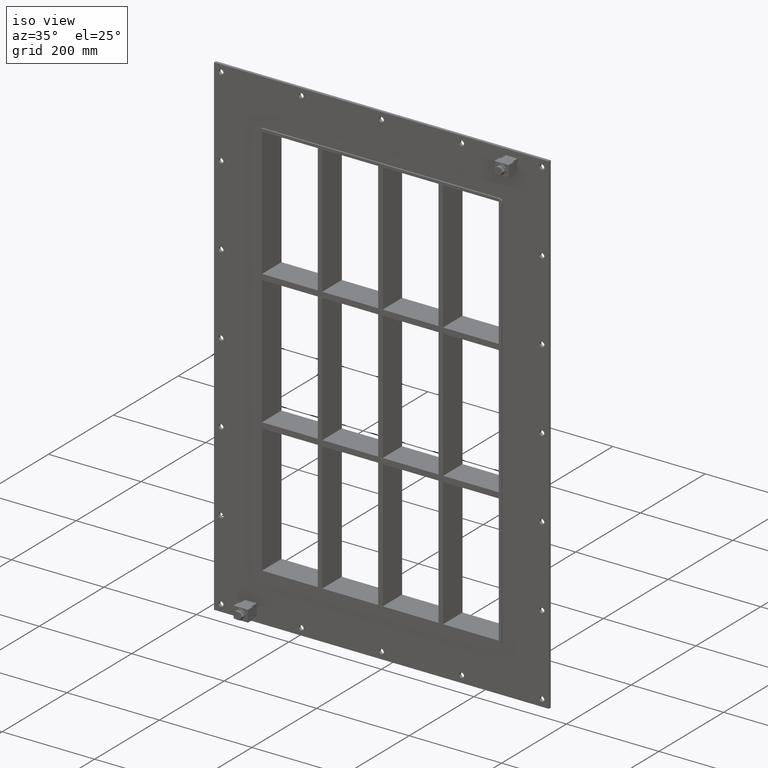
[diagram: clean part render]
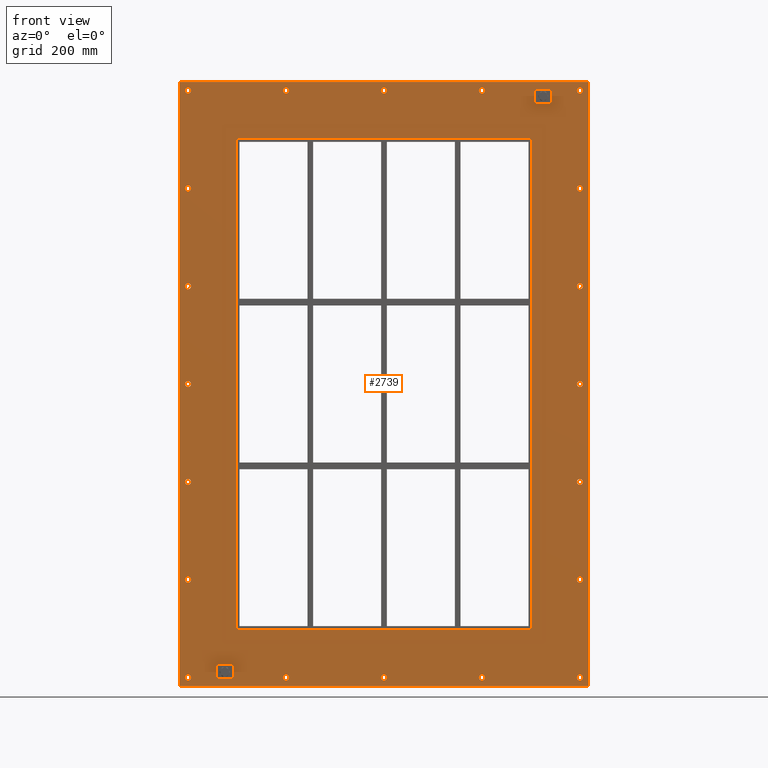
[diagram: tour spotlight — one face highlighted and labeled with its STEP entity id]
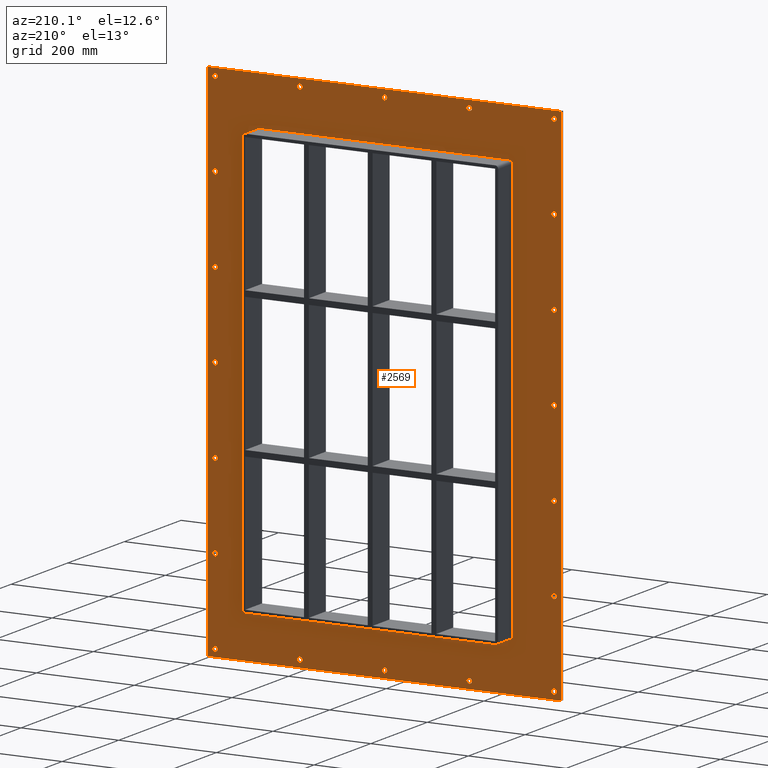
[diagram: tour spotlight — one face highlighted and labeled with its STEP entity id]
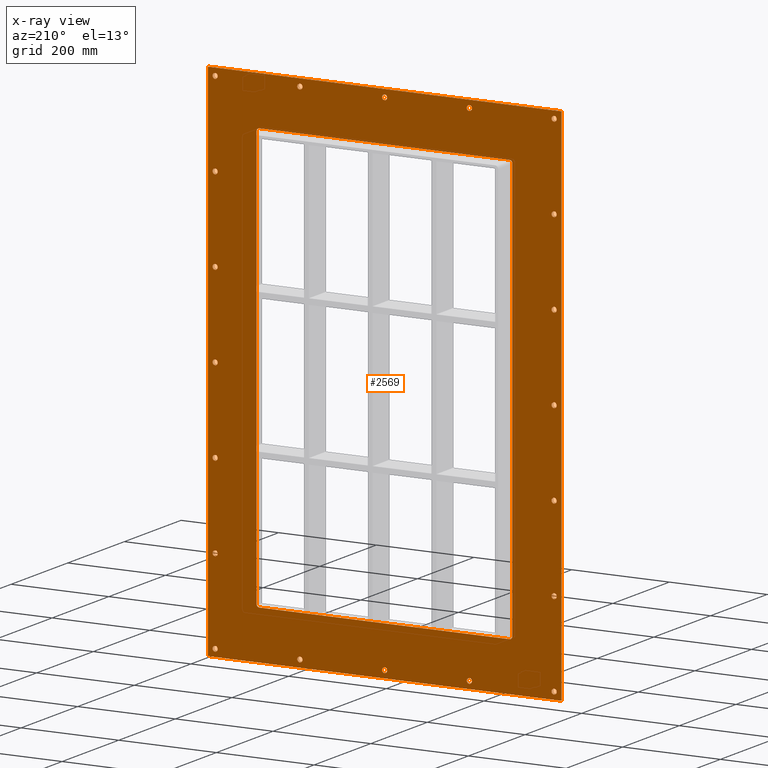
[diagram: x-ray of the same camera — body ghosted, this tour face saturated]
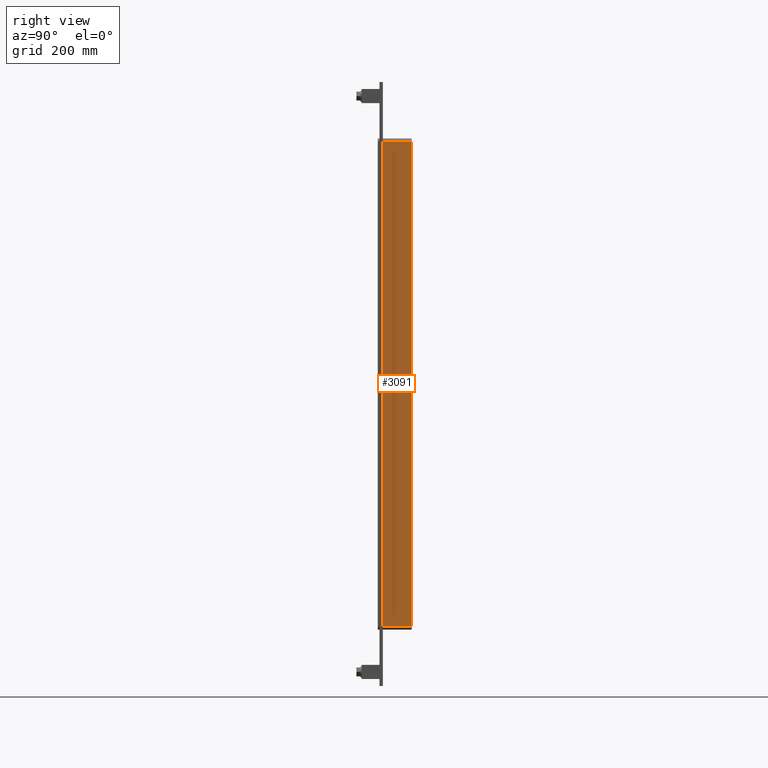
[diagram: tour spotlight — one face highlighted and labeled with its STEP entity id]
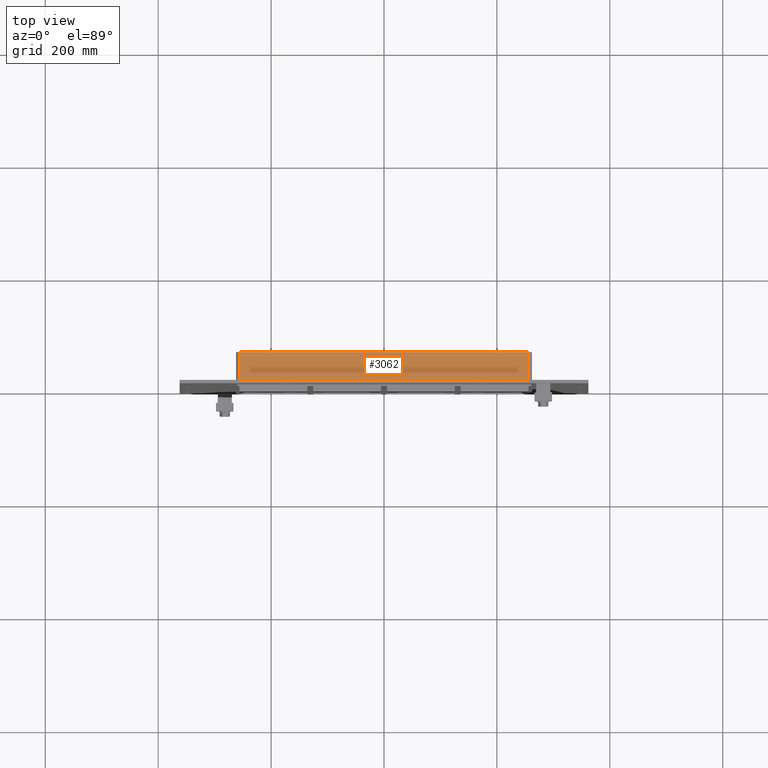
[diagram: tour spotlight — one face highlighted and labeled with its STEP entity id]
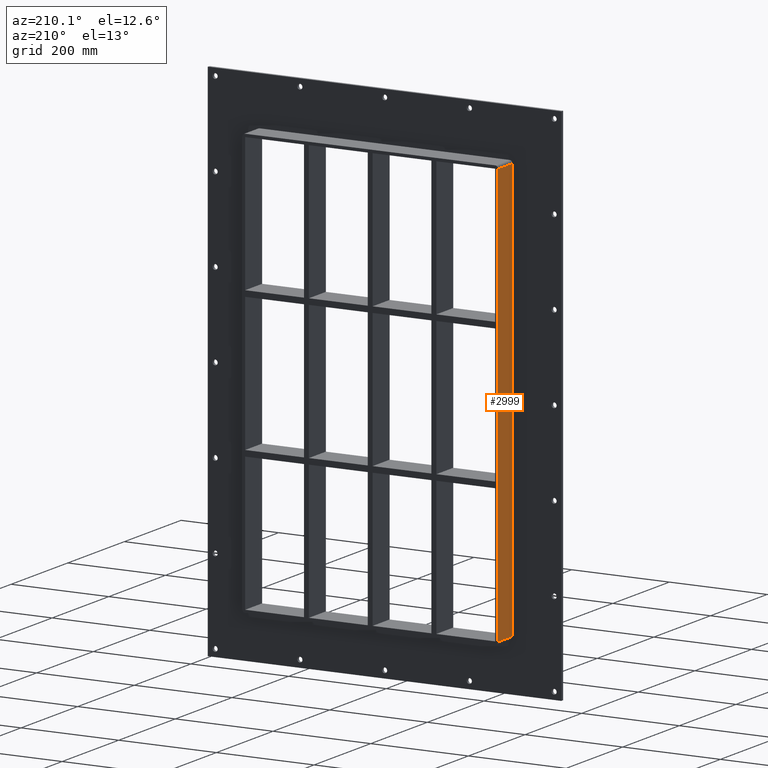
[diagram: tour spotlight — one face highlighted and labeled with its STEP entity id]
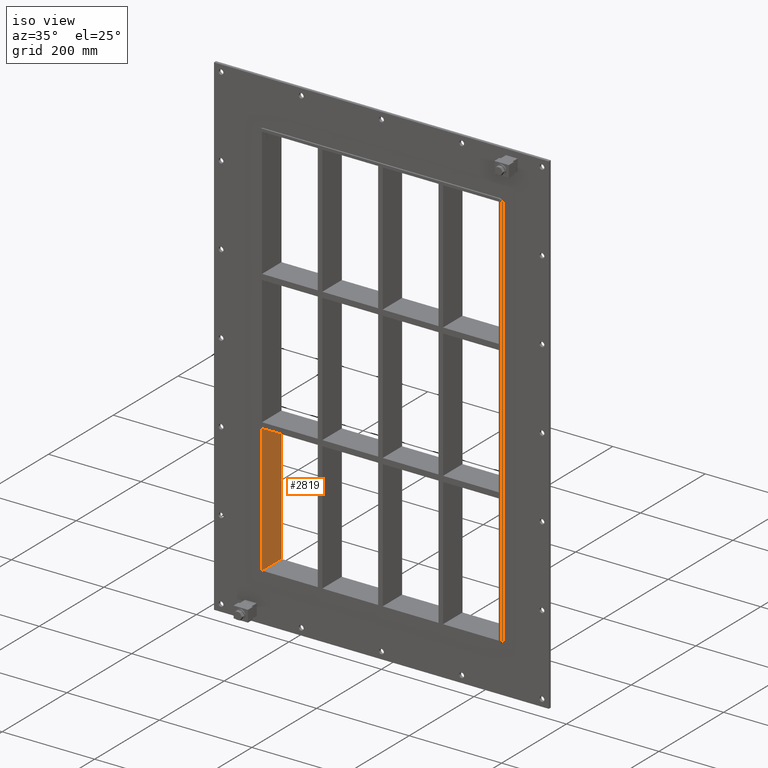
[diagram: tour spotlight — one face highlighted and labeled with its STEP entity id]
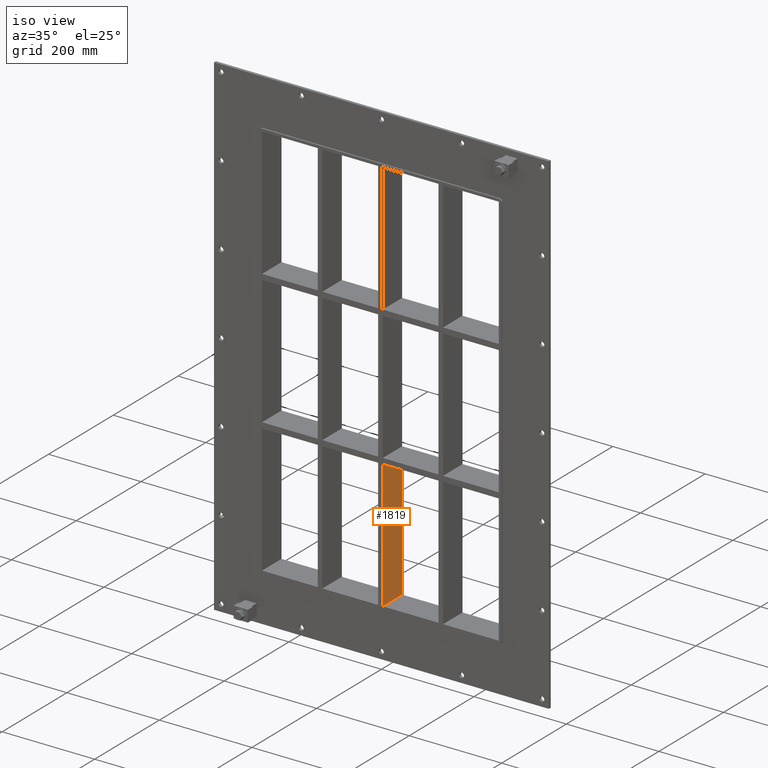
[diagram: tour spotlight — one face highlighted and labeled with its STEP entity id]
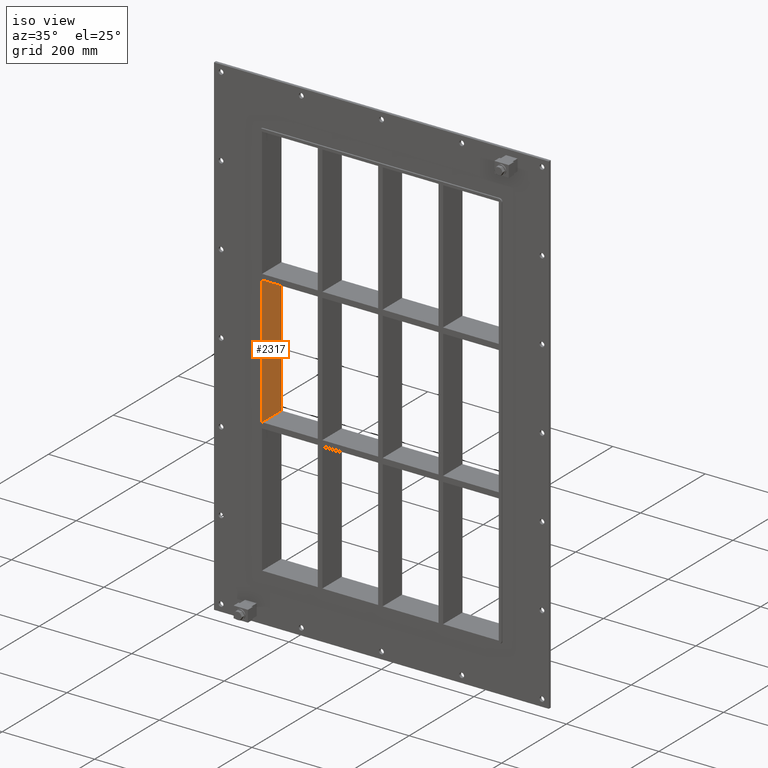
[diagram: tour spotlight — one face highlighted and labeled with its STEP entity id]
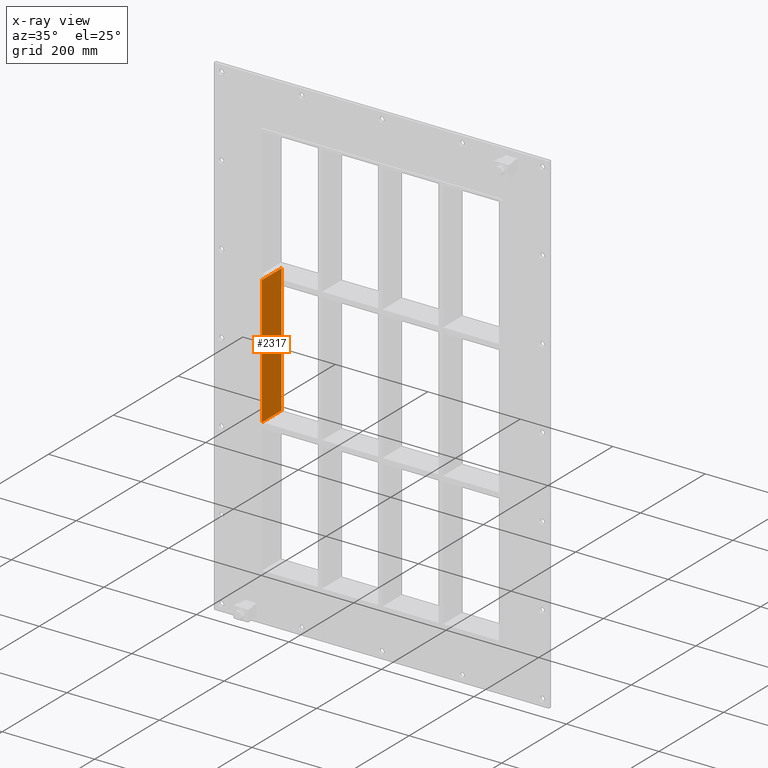
[diagram: x-ray of the same camera — body ghosted, this tour face saturated]
A machine part: a face-by-face anatomy tour. The part has 170 B-rep faces; the first image is the clean iso view, then the 8 largest visible faces are spotlighted one at a time (largest first), each with its STEP entity span.

Face 1 — front view, entity #2739. In plain terms, the highlighted planar face has unit normal (0, 1, 0).
Definition (entity closure, byte-faithful):
#84=CARTESIAN_POINT('',(-341.75000000000017,0.0,-520.0));
#85=VERTEX_POINT('',#84);
#86=CARTESIAN_POINT('',(-347.00000000000017,0.0,-520.0));
#87=DIRECTION('',(0.0,1.0,0.0));
#88=DIRECTION('',(1.0,0.0,0.0));
#89=AXIS2_PLACEMENT_3D('',#86,#87,#88);
#90=CIRCLE('',#89,5.25);
#91=EDGE_CURVE('',#85,#85,#90,.T.);
#112=CARTESIAN_POINT('',(352.24999999999989,0.0,-346.69999999999987));
#113=VERTEX_POINT('',#112);
#114=CARTESIAN_POINT('',(346.99999999999989,0.0,-346.69999999999987));
#115=DIRECTION('',(0.0,1.0,0.0));
#116=DIRECTION('',(1.0,0.0,0.0));
#117=AXIS2_PLACEMENT_3D('',#114,#115,#116);
#118=CIRCLE('',#117,5.25);
#119=EDGE_CURVE('',#113,#113,#118,.T.);
#140=CARTESIAN_POINT('',(-341.75000000000017,0.0,-346.69999999999987));
#141=VERTEX_POINT('',#140);
#142=CARTESIAN_POINT('',(-347.00000000000017,0.0,-346.69999999999987));
#143=DIRECTION('',(0.0,1.0,0.0));
#144=DIRECTION('',(1.0,0.0,0.0));
#145=AXIS2_PLACEMENT_3D('',#142,#143,#144);
#146=CIRCLE('',#145,5.25);
#147=EDGE_CURVE('',#141,#141,#146,.T.);
#168=CARTESIAN_POINT('',(352.24999999999989,0.0,-173.39999999999992));
#169=VERTEX_POINT('',#168);
#170=CARTESIAN_POINT('',(346.99999999999989,0.0,-173.39999999999992));
#171=DIRECTION('',(0.0,1.0,0.0));
#172=DIRECTION('',(1.0,0.0,0.0));
#173=AXIS2_PLACEMENT_3D('',#170,#171,#172);
#174=CIRCLE('',#173,5.25);
#175=EDGE_CURVE('',#169,#169,#174,.T.);
#196=CARTESIAN_POINT('',(-341.75000000000017,0.0,-173.39999999999992));
#197=VERTEX_POINT('',#196);
#198=CARTESIAN_POINT('',(-347.00000000000017,0.0,-173.39999999999992));
#199=DIRECTION('',(0.0,1.0,0.0));
#200=DIRECTION('',(1.0,0.0,0.0));
#201=AXIS2_PLACEMENT_3D('',#198,#199,#200);
#202=CIRCLE('',#201,5.25);
#203=EDGE_CURVE('',#197,#197,#202,.T.);
#224=CARTESIAN_POINT('',(352.24999999999989,0.0,-0.099999999999945));
#225=VERTEX_POINT('',#224);
#226=CARTESIAN_POINT('',(346.99999999999989,0.0,-0.099999999999945));
#227=DIRECTION('',(0.0,1.0,0.0));
#228=DIRECTION('',(1.0,0.0,0.0));
#229=AXIS2_PLACEMENT_3D('',#226,#227,#228);
#230=CIRCLE('',#229,5.25);
#231=EDGE_CURVE('',#225,#225,#230,.T.);
#252=CARTESIAN_POINT('',(-341.75000000000017,0.0,-0.099999999999945));
#253=VERTEX_POINT('',#252);
#254=CARTESIAN_POINT('',(-347.00000000000017,0.0,-0.099999999999945));
#255=DIRECTION('',(0.0,1.0,0.0));
#256=DIRECTION('',(1.0,0.0,0.0));
#257=AXIS2_PLACEMENT_3D('',#254,#255,#256);
#258=CIRCLE('',#257,5.25);
#259=EDGE_CURVE('',#253,#253,#258,.T.);
#280=CARTESIAN_POINT('',(352.24999999999989,0.0,173.20000000000019));
#281=VERTEX_POINT('',#280);
#282=CARTESIAN_POINT('',(346.99999999999989,0.0,173.20000000000019));
#283=DIRECTION('',(0.0,1.0,0.0));
#284=DIRECTION('',(1.0,0.0,0.0));
#285=AXIS2_PLACEMENT_3D('',#282,#283,#284);
#286=CIRCLE('',#285,5.25);
#287=EDGE_CURVE('',#281,#281,#286,.T.);
#308=CARTESIAN_POINT('',(-341.75000000000017,0.0,173.20000000000019));
#309=VERTEX_POINT('',#308);
#310=CARTESIAN_POINT('',(-347.00000000000017,0.0,173.20000000000019));
#311=DIRECTION('',(0.0,1.0,0.0));
#312=DIRECTION('',(1.0,0.0,0.0));
#313=AXIS2_PLACEMENT_3D('',#310,#311,#312);
#314=CIRCLE('',#313,5.25);
#315=EDGE_CURVE('',#309,#309,#314,.T.);
#336=CARTESIAN_POINT('',(352.24999999999989,0.0,346.50000000000023));
#337=VERTEX_POINT('',#336);
#338=CARTESIAN_POINT('',(346.99999999999989,0.0,346.50000000000023));
#339=DIRECTION('',(0.0,1.0,0.0));
#340=DIRECTION('',(1.0,0.0,0.0));
#341=AXIS2_PLACEMENT_3D('',#338,#339,#340);
#342=CIRCLE('',#341,5.25);
#343=EDGE_CURVE('',#337,#337,#342,.T.);
#364=CARTESIAN_POINT('',(-341.75000000000017,0.0,346.50000000000023));
#365=VERTEX_POINT('',#364);
#366=CARTESIAN_POINT('',(-347.00000000000017,0.0,346.50000000000023));
#367=DIRECTION('',(0.0,1.0,0.0));
#368=DIRECTION('',(1.0,0.0,0.0));
#369=AXIS2_PLACEMENT_3D('',#366,#367,#368);
#370=CIRCLE('',#369,5.25);
#371=EDGE_CURVE('',#365,#365,#370,.T.);
#392=CARTESIAN_POINT('',(-168.25000000000017,0.0,519.80000000000018));
#393=VERTEX_POINT('',#392);
#394=CARTESIAN_POINT('',(-173.50000000000017,0.0,519.80000000000018));
#395=DIRECTION('',(0.0,1.0,0.0));
#396=DIRECTION('',(1.0,0.0,0.0));
#397=AXIS2_PLACEMENT_3D('',#394,#395,#396);
#398=CIRCLE('',#397,5.25);
#399=EDGE_CURVE('',#393,#393,#398,.T.);
#420=CARTESIAN_POINT('',(-168.25000000000017,0.0,-520.0));
#421=VERTEX_POINT('',#420);
#422=CARTESIAN_POINT('',(-173.50000000000017,0.0,-520.0));
#423=DIRECTION('',(0.0,1.0,0.0));
#424=DIRECTION('',(1.0,0.0,0.0));
#425=AXIS2_PLACEMENT_3D('',#422,#423,#424);
#426=CIRCLE('',#425,5.25);
#427=EDGE_CURVE('',#421,#421,#426,.T.);
#448=CARTESIAN_POINT('',(5.249999999999844,0.0,519.80000000000018));
#449=VERTEX_POINT('',#448);
#450=CARTESIAN_POINT('',(-1.421085E-013,0.0,519.80000000000018));
#451=DIRECTION('',(0.0,1.0,0.0));
#452=DIRECTION('',(1.0,0.0,0.0));
#453=AXIS2_PLACEMENT_3D('',#450,#451,#452);
#454=CIRCLE('',#453,5.25);
#455=EDGE_CURVE('',#449,#449,#454,.T.);
#476=CARTESIAN_POINT('',(5.249999999999844,0.0,-520.0));
#477=VERTEX_POINT('',#476);
#478=CARTESIAN_POINT('',(-1.421085E-013,0.0,-520.0));
#479=DIRECTION('',(0.0,1.0,0.0));
#480=DIRECTION('',(1.0,0.0,0.0));
#481=AXIS2_PLACEMENT_3D('',#478,#479,#480);
#482=CIRCLE('',#481,5.25);
#483=EDGE_CURVE('',#477,#477,#482,.T.);
#504=CARTESIAN_POINT('',(178.74999999999986,0.0,519.80000000000018));
#505=VERTEX_POINT('',#504);
#506=CARTESIAN_POINT('',(173.49999999999989,0.0,519.80000000000018));
#507=DIRECTION('',(0.0,1.0,0.0));
#508=DIRECTION('',(1.0,0.0,0.0));
#509=AXIS2_PLACEMENT_3D('',#506,#507,#508);
#510=CIRCLE('',#509,5.25);
#511=EDGE_CURVE('',#505,#505,#510,.T.);
#532=CARTESIAN_POINT('',(178.74999999999986,0.0,-520.0));
#533=VERTEX_POINT('',#532);
#534=CARTESIAN_POINT('',(173.49999999999989,0.0,-520.0));
#535=DIRECTION('',(0.0,1.0,0.0));
#536=DIRECTION('',(1.0,0.0,0.0));
#537=AXIS2_PLACEMENT_3D('',#534,#535,#536);
#538=CIRCLE('',#537,5.25);
#539=EDGE_CURVE('',#533,#533,#538,.T.);
#560=CARTESIAN_POINT('',(352.24999999999989,0.0,-520.0));
#561=VERTEX_POINT('',#560);
#562=CARTESIAN_POINT('',(346.99999999999989,0.0,-520.0));
#563=DIRECTION('',(0.0,1.0,0.0));
#564=DIRECTION('',(1.0,0.0,0.0));
#565=AXIS2_PLACEMENT_3D('',#562,#563,#564);
#566=CIRCLE('',#565,5.25);
#567=EDGE_CURVE('',#561,#561,#566,.T.);
#588=CARTESIAN_POINT('',(-341.75000000000017,0.0,519.80000000000018));
#589=VERTEX_POINT('',#588);
#590=CARTESIAN_POINT('',(-347.00000000000017,0.0,519.80000000000018));
#591=DIRECTION('',(0.0,1.0,0.0));
#592=DIRECTION('',(1.0,0.0,0.0));
#593=AXIS2_PLACEMENT_3D('',#590,#591,#592);
#594=CIRCLE('',#593,5.25);
#595=EDGE_CURVE('',#589,#589,#594,.T.);
#616=CARTESIAN_POINT('',(352.24999999999989,0.0,519.80000000000018));
#617=VERTEX_POINT('',#616);
#618=CARTESIAN_POINT('',(346.99999999999989,0.0,519.80000000000018));
#619=DIRECTION('',(0.0,1.0,0.0));
#620=DIRECTION('',(1.0,0.0,0.0));
#621=AXIS2_PLACEMENT_3D('',#618,#619,#620);
#622=CIRCLE('',#621,5.25);
#623=EDGE_CURVE('',#617,#617,#622,.T.);
#2570=CARTESIAN_POINT('',(3.802235E-014,0.0,0.0));
#2571=DIRECTION('',(0.0,1.0,0.0));
#2572=DIRECTION('',(0.0,0.0,1.0));
#2573=AXIS2_PLACEMENT_3D('',#2570,#2571,#2572);
#2574=PLANE('',#2573);
#2575=CARTESIAN_POINT('',(-362.0,0.0,534.99999999999989));
#2576=VERTEX_POINT('',#2575);
#2577=CARTESIAN_POINT('',(362.00000000000011,0.0,534.99999999999989));
#2578=VERTEX_POINT('',#2577);
#2579=CARTESIAN_POINT('',(-362.0,0.0,534.99999999999989));
#2580=DIRECTION('',(1.0,0.0,0.0));
#2581=VECTOR('',#2580,724.0);
#2582=LINE('',#2579,#2581);
#2583=EDGE_CURVE('',#2576,#2578,#2582,.T.);
#2584=ORIENTED_EDGE('',*,*,#2583,.F.);
#2585=CARTESIAN_POINT('',(-362.0,0.0,-534.99999999999989));
#2586=VERTEX_POINT('',#2585);
#2587=CARTESIAN_POINT('',(-362.0,0.0,-534.99999999999989));
#2588=DIRECTION('',(0.0,0.0,1.0));
#2589=VECTOR('',#2588,1069.9999999999998);
#2590=LINE('',#2587,#2589);
#2591=EDGE_CURVE('',#2586,#2576,#2590,.T.);
#2592=ORIENTED_EDGE('',*,*,#2591,.F.);
#2593=CARTESIAN_POINT('',(362.00000000000011,0.0,-534.99999999999989));
#2594=VERTEX_POINT('',#2593);
#2595=CARTESIAN_POINT('',(362.00000000000011,0.0,-534.99999999999989));
#2596=DIRECTION('',(-1.0,0.0,0.0));
#2597=VECTOR('',#2596,724.0);
#2598=LINE('',#2595,#2597);
#2599=EDGE_CURVE('',#2594,#2586,#2598,.T.);
#2600=ORIENTED_EDGE('',*,*,#2599,.F.);
#2601=CARTESIAN_POINT('',(362.00000000000011,0.0,534.99999999999989));
#2602=DIRECTION('',(0.0,0.0,-1.0));
#2603=VECTOR('',#2602,1069.9999999999998);
#2604=LINE('',#2601,#2603);
#2605=EDGE_CURVE('',#2578,#2594,#2604,.T.);
#2606=ORIENTED_EDGE('',*,*,#2605,.F.);
#2607=EDGE_LOOP('',(#2584,#2592,#2600,#2606));
#2608=FACE_OUTER_BOUND('',#2607,.T.);
#2609=ORIENTED_EDGE('',*,*,#91,.T.);
#2610=EDGE_LOOP('',(#2609));
#2611=FACE_BOUND('',#2610,.T.);
#2612=ORIENTED_EDGE('',*,*,#119,.T.);
#2613=EDGE_LOOP('',(#2612));
#2614=FACE_BOUND('',#2613,.T.);
#2615=ORIENTED_EDGE('',*,*,#147,.T.);
#2616=EDGE_LOOP('',(#2615));
#2617=FACE_BOUND('',#2616,.T.);
#2618=ORIENTED_EDGE('',*,*,#175,.T.);
#2619=EDGE_LOOP('',(#2618));
#2620=FACE_BOUND('',#2619,.T.);
#2621=ORIENTED_EDGE('',*,*,#203,.T.);
#2622=EDGE_LOOP('',(#2621));
#2623=FACE_BOUND('',#2622,.T.);
#2624=ORIENTED_EDGE('',*,*,#231,.T.);
#2625=EDGE_LOOP('',(#2624));
#2626=FACE_BOUND('',#2625,.T.);
#2627=ORIENTED_EDGE('',*,*,#259,.T.);
#2628=EDGE_LOOP('',(#2627));
#2629=FACE_BOUND('',#2628,.T.);
#2630=ORIENTED_EDGE('',*,*,#287,.T.);
#2631=EDGE_LOOP('',(#2630));
#2632=FACE_BOUND('',#2631,.T.);
#2633=ORIENTED_EDGE('',*,*,#315,.T.);
#2634=EDGE_LOOP('',(#2633));
#2635=FACE_BOUND('',#2634,.T.);
#2636=ORIENTED_EDGE('',*,*,#343,.T.);
#2637=EDGE_LOOP('',(#2636));
#2638=FACE_BOUND('',#2637,.T.);
#2639=ORIENTED_EDGE('',*,*,#371,.T.);
#2640=EDGE_LOOP('',(#2639));
#2641=FACE_BOUND('',#2640,.T.);
#2642=ORIENTED_EDGE('',*,*,#399,.T.);
#2643=EDGE_LOOP('',(#2642));
#2644=FACE_BOUND('',#2643,.T.);
#2645=ORIENTED_EDGE('',*,*,#427,.T.);
#2646=EDGE_LOOP('',(#2645));
#2647=FACE_BOUND('',#2646,.T.);
#2648=ORIENTED_EDGE('',*,*,#455,.T.);
#2649=EDGE_LOOP('',(#2648));
#2650=FACE_BOUND('',#2649,.T.);
#2651=ORIENTED_EDGE('',*,*,#483,.T.);
#2652=EDGE_LOOP('',(#2651));
#2653=FACE_BOUND('',#2652,.T.);
#2654=ORIENTED_EDGE('',*,*,#511,.T.);
#2655=EDGE_LOOP('',(#2654));
#2656=FACE_BOUND('',#2655,.T.);
#2657=ORIENTED_EDGE('',*,*,#539,.T.);
#2658=EDGE_LOOP('',(#2657));
#2659=FACE_BOUND('',#2658,.T.);
#2660=ORIENTED_EDGE('',*,*,#567,.T.);
#2661=EDGE_LOOP('',(#2660));
#2662=FACE_BOUND('',#2661,.T.);
#2663=ORIENTED_EDGE('',*,*,#595,.T.);
#2664=EDGE_LOOP('',(#2663));
#2665=FACE_BOUND('',#2664,.T.);
#2666=ORIENTED_EDGE('',*,*,#623,.T.);
#2667=EDGE_LOOP('',(#2666));
#2668=FACE_BOUND('',#2667,.T.);
#2669=CARTESIAN_POINT('',(-256.00000000000006,0.0,435.0));
#2670=VERTEX_POINT('',#2669);
#2671=CARTESIAN_POINT('',(-262.00000000000006,0.0,428.99999999999989));
#2672=VERTEX_POINT('',#2671);
#2673=CARTESIAN_POINT('',(-256.00000000000006,0.0,428.99999999999989));
#2674=DIRECTION('',(0.0,-1.0,0.0));
#2675=DIRECTION('',(-0.707106781186543,0.0,0.707106781186552));
#2676=AXIS2_PLACEMENT_3D('',#2673,#2674,#2675);
#2677=CIRCLE('',#2676,6.0);
#2678=EDGE_CURVE('',#2670,#2672,#2677,.T.);
#2679=ORIENTED_EDGE('',*,*,#2678,.F.);
#2680=CARTESIAN_POINT('',(255.99999999999997,0.0,435.0));
#2681=VERTEX_POINT('',#2680);
#2682=CARTESIAN_POINT('',(256.0,0.0,435.0));
#2683=DIRECTION('',(-1.0,0.0,0.0));
#2684=VECTOR('',#2683,512.0);
#2685=LINE('',#2682,#2684);
#2686=EDGE_CURVE('',#2681,#2670,#2685,.T.);
#2687=ORIENTED_EDGE('',*,*,#2686,.F.);
#2688=CARTESIAN_POINT('',(262.0,0.0,429.0));
#2689=VERTEX_POINT('',#2688);
#2690=CARTESIAN_POINT('',(255.99999999999997,0.0,429.0));
#2691=DIRECTION('',(0.0,-1.0,0.0));
#2692=DIRECTION('',(0.707106781186543,0.0,0.707106781186552));
#2693=AXIS2_PLACEMENT_3D('',#2690,#2691,#2692);
#2694=CIRCLE('',#2693,6.0);
#2695=EDGE_CURVE('',#2689,#2681,#2694,.T.);
#2696=ORIENTED_EDGE('',*,*,#2695,.F.);
#2697=CARTESIAN_POINT('',(262.0,0.0,-429.00000000000006));
#2698=VERTEX_POINT('',#2697);
#2699=CARTESIAN_POINT('',(262.0,0.0,-429.0));
#2700=DIRECTION('',(0.0,0.0,1.0));
#2701=VECTOR('',#2700,858.0);
#2702=LINE('',#2699,#2701);
#2703=EDGE_CURVE('',#2698,#2689,#2702,.T.);
#2704=ORIENTED_EDGE('',*,*,#2703,.F.);
#2705=CARTESIAN_POINT('',(255.99999999999997,0.0,-435.00000000000011));
#2706=VERTEX_POINT('',#2705);
#2707=CARTESIAN_POINT('',(255.99999999999997,0.0,-429.00000000000006));
#2708=DIRECTION('',(0.0,-1.0,0.0));
#2709=DIRECTION('',(0.707106781186543,0.0,-0.707106781186552));
#2710=AXIS2_PLACEMENT_3D('',#2707,#2708,#2709);
#2711=CIRCLE('',#2710,6.0);
#2712=EDGE_CURVE('',#2706,#2698,#2711,.T.);
#2713=ORIENTED_EDGE('',*,*,#2712,.F.);
#2714=CARTESIAN_POINT('',(-256.00000000000006,0.0,-435.00000000000011));
#2715=VERTEX_POINT('',#2714);
#2716=CARTESIAN_POINT('',(-256.0,0.0,-435.00000000000011));
#2717=DIRECTION('',(1.0,0.0,0.0));
#2718=VECTOR('',#2717,512.0);
#2719=LINE('',#2716,#2718);
#2720=EDGE_CURVE('',#2715,#2706,#2719,.T.);
#2721=ORIENTED_EDGE('',*,*,#2720,.F.);
#2722=CARTESIAN_POINT('',(-262.00000000000006,0.0,-429.00000000000023));
#2723=VERTEX_POINT('',#2722);
#2724=CARTESIAN_POINT('',(-256.00000000000006,0.0,-429.00000000000023));
#2725=DIRECTION('',(0.0,-1.0,0.0));
#2726=DIRECTION('',(-0.707106781186552,0.0,-0.707106781186543));
#2727=AXIS2_PLACEMENT_3D('',#2724,#2725,#2726);
#2728=CIRCLE('',#2727,6.000000000000001);
#2729=EDGE_CURVE('',#2723,#2715,#2728,.T.);
#2730=ORIENTED_EDGE('',*,*,#2729,.F.);
#2731=CARTESIAN_POINT('',(-262.00000000000006,0.0,428.99999999999994));
#2732=DIRECTION('',(0.0,0.0,-1.0));
#2733=VECTOR('',#2732,858.00000000000011);
#2734=LINE('',#2731,#2733);
#2735=EDGE_CURVE('',#2672,#2723,#2734,.T.);
#2736=ORIENTED_EDGE('',*,*,#2735,.F.);
#2737=EDGE_LOOP('',(#2679,#2687,#2696,#2704,#2713,#2721,#2730,#2736));
#2738=FACE_BOUND('',#2737,.T.);
#2739=ADVANCED_FACE('',(#2608,#2611,#2614,#2617,#2620,#2623,#2626,#2629,#2632,#2635,#2638,#2641,#2644,#2647,#2650,#2653,#2656,#2659,#2662,#2665,#2668,#2738),#2574,.F.);

Face 2 — auxiliary view, entity #2569. An x-ray twin of the same camera follows (body ghosted, this face saturated) — the face is partly hidden behind the body. In plain terms, the highlighted planar face has unit normal (0, 1, 0).
Definition (entity closure, byte-faithful):
#73=CARTESIAN_POINT('',(-352.25000000000017,5.999999999999943,-520.0));
#74=VERTEX_POINT('',#73);
#75=CARTESIAN_POINT('',(-347.00000000000017,5.999999999999943,-520.0));
#76=DIRECTION('',(0.0,-1.0,0.0));
#77=DIRECTION('',(1.0,0.0,0.0));
#78=AXIS2_PLACEMENT_3D('',#75,#76,#77);
#79=CIRCLE('',#78,5.25);
#80=EDGE_CURVE('',#74,#74,#79,.T.);
#101=CARTESIAN_POINT('',(341.74999999999989,5.999999999999943,-346.69999999999987));
#102=VERTEX_POINT('',#101);
#103=CARTESIAN_POINT('',(346.99999999999989,5.999999999999943,-346.69999999999987));
#104=DIRECTION('',(0.0,-1.0,0.0));
#105=DIRECTION('',(1.0,0.0,0.0));
#106=AXIS2_PLACEMENT_3D('',#103,#104,#105);
#107=CIRCLE('',#106,5.25);
#108=EDGE_CURVE('',#102,#102,#107,.T.);
#129=CARTESIAN_POINT('',(-352.25000000000017,5.999999999999943,-346.69999999999987));
#130=VERTEX_POINT('',#129);
#131=CARTESIAN_POINT('',(-347.00000000000017,5.999999999999943,-346.69999999999987));
#132=DIRECTION('',(0.0,-1.0,0.0));
#133=DIRECTION('',(1.0,0.0,0.0));
#134=AXIS2_PLACEMENT_3D('',#131,#132,#133);
#135=CIRCLE('',#134,5.25);
#136=EDGE_CURVE('',#130,#130,#135,.T.);
#157=CARTESIAN_POINT('',(341.74999999999989,5.999999999999943,-173.39999999999992));
#158=VERTEX_POINT('',#157);
#159=CARTESIAN_POINT('',(346.99999999999989,5.999999999999943,-173.39999999999992));
#160=DIRECTION('',(0.0,-1.0,0.0));
#161=DIRECTION('',(1.0,0.0,0.0));
#162=AXIS2_PLACEMENT_3D('',#159,#160,#161);
#163=CIRCLE('',#162,5.25);
#164=EDGE_CURVE('',#158,#158,#163,.T.);
#185=CARTESIAN_POINT('',(-352.25000000000017,5.999999999999943,-173.39999999999992));
#186=VERTEX_POINT('',#185);
#187=CARTESIAN_POINT('',(-347.00000000000017,5.999999999999943,-173.39999999999992));
#188=DIRECTION('',(0.0,-1.0,0.0));
#189=DIRECTION('',(1.0,0.0,0.0));
#190=AXIS2_PLACEMENT_3D('',#187,#188,#189);
#191=CIRCLE('',#190,5.25);
#192=EDGE_CURVE('',#186,#186,#191,.T.);
#213=CARTESIAN_POINT('',(341.74999999999989,5.999999999999943,-0.099999999999945));
#214=VERTEX_POINT('',#213);
#215=CARTESIAN_POINT('',(346.99999999999989,5.999999999999943,-0.099999999999945));
#216=DIRECTION('',(0.0,-1.0,0.0));
#217=DIRECTION('',(1.0,0.0,0.0));
#218=AXIS2_PLACEMENT_3D('',#215,#216,#217);
#219=CIRCLE('',#218,5.25);
#220=EDGE_CURVE('',#214,#214,#219,.T.);
#241=CARTESIAN_POINT('',(-352.25000000000017,5.999999999999943,-0.099999999999945));
#242=VERTEX_POINT('',#241);
#243=CARTESIAN_POINT('',(-347.00000000000017,5.999999999999943,-0.099999999999945));
#244=DIRECTION('',(0.0,-1.0,0.0));
#245=DIRECTION('',(1.0,0.0,0.0));
#246=AXIS2_PLACEMENT_3D('',#243,#244,#245);
#247=CIRCLE('',#246,5.25);
#248=EDGE_CURVE('',#242,#242,#247,.T.);
#269=CARTESIAN_POINT('',(341.74999999999989,5.999999999999943,173.20000000000019));
#270=VERTEX_POINT('',#269);
#271=CARTESIAN_POINT('',(346.99999999999989,5.999999999999943,173.20000000000019));
#272=DIRECTION('',(0.0,-1.0,0.0));
#273=DIRECTION('',(1.0,0.0,0.0));
#274=AXIS2_PLACEMENT_3D('',#271,#272,#273);
#275=CIRCLE('',#274,5.25);
#276=EDGE_CURVE('',#270,#270,#275,.T.);
#297=CARTESIAN_POINT('',(-352.25000000000017,5.999999999999943,173.20000000000019));
#298=VERTEX_POINT('',#297);
#299=CARTESIAN_POINT('',(-347.00000000000017,5.999999999999943,173.20000000000019));
#300=DIRECTION('',(0.0,-1.0,0.0));
#301=DIRECTION('',(1.0,0.0,0.0));
#302=AXIS2_PLACEMENT_3D('',#299,#300,#301);
#303=CIRCLE('',#302,5.25);
#304=EDGE_CURVE('',#298,#298,#303,.T.);
#325=CARTESIAN_POINT('',(341.74999999999989,5.999999999999943,346.50000000000023));
#326=VERTEX_POINT('',#325);
#327=CARTESIAN_POINT('',(346.99999999999989,5.999999999999943,346.50000000000023));
#328=DIRECTION('',(0.0,-1.0,0.0));
#329=DIRECTION('',(1.0,0.0,0.0));
#330=AXIS2_PLACEMENT_3D('',#327,#328,#329);
#331=CIRCLE('',#330,5.25);
#332=EDGE_CURVE('',#326,#326,#331,.T.);
#353=CARTESIAN_POINT('',(-352.25000000000017,5.999999999999943,346.50000000000023));
#354=VERTEX_POINT('',#353);
#355=CARTESIAN_POINT('',(-347.00000000000017,5.999999999999943,346.50000000000023));
#356=DIRECTION('',(0.0,-1.0,0.0));
#357=DIRECTION('',(1.0,0.0,0.0));
#358=AXIS2_PLACEMENT_3D('',#355,#356,#357);
#359=CIRCLE('',#358,5.25);
#360=EDGE_CURVE('',#354,#354,#359,.T.);
#381=CARTESIAN_POINT('',(-178.75000000000014,5.999999999999943,519.80000000000018));
#382=VERTEX_POINT('',#381);
#383=CARTESIAN_POINT('',(-173.50000000000017,5.999999999999943,519.80000000000018));
#384=DIRECTION('',(0.0,-1.0,0.0));
#385=DIRECTION('',(1.0,0.0,0.0));
#386=AXIS2_PLACEMENT_3D('',#383,#384,#385);
#387=CIRCLE('',#386,5.25);
#388=EDGE_CURVE('',#382,#382,#387,.T.);
#409=CARTESIAN_POINT('',(-178.75000000000014,5.999999999999943,-520.0));
#410=VERTEX_POINT('',#409);
#411=CARTESIAN_POINT('',(-173.50000000000017,5.999999999999943,-520.0));
#412=DIRECTION('',(0.0,-1.0,0.0));
#413=DIRECTION('',(1.0,0.0,0.0));
#414=AXIS2_PLACEMENT_3D('',#411,#412,#413);
#415=CIRCLE('',#414,5.25);
#416=EDGE_CURVE('',#410,#410,#415,.T.);
#437=CARTESIAN_POINT('',(-5.250000000000128,5.999999999999943,519.80000000000018));
#438=VERTEX_POINT('',#437);
#439=CARTESIAN_POINT('',(-1.421085E-013,5.999999999999943,519.80000000000018));
#440=DIRECTION('',(0.0,-1.0,0.0));
#441=DIRECTION('',(1.0,0.0,0.0));
#442=AXIS2_PLACEMENT_3D('',#439,#440,#441);
#443=CIRCLE('',#442,5.25);
#444=EDGE_CURVE('',#438,#438,#443,.T.);
#465=CARTESIAN_POINT('',(-5.250000000000128,5.999999999999943,-520.0));
#466=VERTEX_POINT('',#465);
#467=CARTESIAN_POINT('',(-1.421085E-013,5.999999999999943,-520.0));
#468=DIRECTION('',(0.0,-1.0,0.0));
#469=DIRECTION('',(1.0,0.0,0.0));
#470=AXIS2_PLACEMENT_3D('',#467,#468,#469);
#471=CIRCLE('',#470,5.25);
#472=EDGE_CURVE('',#466,#466,#471,.T.);
#493=CARTESIAN_POINT('',(168.24999999999989,5.999999999999943,519.80000000000018));
#494=VERTEX_POINT('',#493);
#495=CARTESIAN_POINT('',(173.49999999999989,5.999999999999943,519.80000000000018));
#496=DIRECTION('',(0.0,-1.0,0.0));
#497=DIRECTION('',(1.0,0.0,0.0));
#498=AXIS2_PLACEMENT_3D('',#495,#496,#497);
#499=CIRCLE('',#498,5.25);
#500=EDGE_CURVE('',#494,#494,#499,.T.);
#521=CARTESIAN_POINT('',(168.24999999999989,5.999999999999943,-520.0));
#522=VERTEX_POINT('',#521);
#523=CARTESIAN_POINT('',(173.49999999999989,5.999999999999943,-520.0));
#524=DIRECTION('',(0.0,-1.0,0.0));
#525=DIRECTION('',(1.0,0.0,0.0));
#526=AXIS2_PLACEMENT_3D('',#523,#524,#525);
#527=CIRCLE('',#526,5.25);
#528=EDGE_CURVE('',#522,#522,#527,.T.);
#549=CARTESIAN_POINT('',(341.74999999999989,5.999999999999943,-520.0));
#550=VERTEX_POINT('',#549);
#551=CARTESIAN_POINT('',(346.99999999999989,5.999999999999943,-520.0));
#552=DIRECTION('',(0.0,-1.0,0.0));
#553=DIRECTION('',(1.0,0.0,0.0));
#554=AXIS2_PLACEMENT_3D('',#551,#552,#553);
#555=CIRCLE('',#554,5.25);
#556=EDGE_CURVE('',#550,#550,#555,.T.);
#577=CARTESIAN_POINT('',(-352.25000000000017,5.999999999999943,519.80000000000018));
#578=VERTEX_POINT('',#577);
#579=CARTESIAN_POINT('',(-347.00000000000017,5.999999999999943,519.80000000000018));
#580=DIRECTION('',(0.0,-1.0,0.0));
#581=DIRECTION('',(1.0,0.0,0.0));
#582=AXIS2_PLACEMENT_3D('',#579,#580,#581);
#583=CIRCLE('',#582,5.25);
#584=EDGE_CURVE('',#578,#578,#583,.T.);
#605=CARTESIAN_POINT('',(341.74999999999989,5.999999999999943,519.80000000000018));
#606=VERTEX_POINT('',#605);
#607=CARTESIAN_POINT('',(346.99999999999989,5.999999999999943,519.80000000000018));
#608=DIRECTION('',(0.0,-1.0,0.0));
#609=DIRECTION('',(1.0,0.0,0.0));
#610=AXIS2_PLACEMENT_3D('',#607,#608,#609);
#611=CIRCLE('',#610,5.25);
#612=EDGE_CURVE('',#606,#606,#611,.T.);
#2400=CARTESIAN_POINT('',(3.802235E-014,6.000000000000001,0.0));
#2401=DIRECTION('',(0.0,1.0,0.0));
#2402=DIRECTION('',(0.0,0.0,1.0));
#2403=AXIS2_PLACEMENT_3D('',#2400,#2401,#2402);
#2404=PLANE('',#2403);
#2405=CARTESIAN_POINT('',(-362.0,6.000000000000001,534.99999999999989));
#2406=VERTEX_POINT('',#2405);
#2407=CARTESIAN_POINT('',(362.0,6.000000000000001,534.99999999999989));
#2408=VERTEX_POINT('',#2407);
#2409=CARTESIAN_POINT('',(-362.0,6.000000000000001,534.99999999999989));
#2410=DIRECTION('',(1.0,0.0,0.0));
#2411=VECTOR('',#2410,724.0);
#2412=LINE('',#2409,#2411);
#2413=EDGE_CURVE('',#2406,#2408,#2412,.T.);
#2414=ORIENTED_EDGE('',*,*,#2413,.T.);
#2415=CARTESIAN_POINT('',(362.0,6.000000000000001,-534.99999999999989));
#2416=VERTEX_POINT('',#2415);
#2417=CARTESIAN_POINT('',(362.00000000000011,6.000000000000001,534.99999999999989));
#2418=DIRECTION('',(0.0,0.0,-1.0));
#2419=VECTOR('',#2418,1069.9999999999998);
#2420=LINE('',#2417,#2419);
#2421=EDGE_CURVE('',#2408,#2416,#2420,.T.);
#2422=ORIENTED_EDGE('',*,*,#2421,.T.);
#2423=CARTESIAN_POINT('',(-362.0,6.000000000000001,-534.99999999999989));
#2424=VERTEX_POINT('',#2423);
#2425=CARTESIAN_POINT('',(362.00000000000011,6.000000000000001,-534.99999999999989));
#2426=DIRECTION('',(-1.0,0.0,0.0));
#2427=VECTOR('',#2426,724.0);
#2428=LINE('',#2425,#2427);
#2429=EDGE_CURVE('',#2416,#2424,#2428,.T.);
#2430=ORIENTED_EDGE('',*,*,#2429,.T.);
#2431=CARTESIAN_POINT('',(-362.0,6.000000000000001,-534.99999999999989));
#2432=DIRECTION('',(0.0,0.0,1.0));
#2433=VECTOR('',#2432,1069.9999999999998);
#2434=LINE('',#2431,#2433);
#2435=EDGE_CURVE('',#2424,#2406,#2434,.T.);
#2436=ORIENTED_EDGE('',*,*,#2435,.T.);
#2437=EDGE_LOOP('',(#2414,#2422,#2430,#2436));
#2438=FACE_OUTER_BOUND('',#2437,.T.);
#2439=ORIENTED_EDGE('',*,*,#80,.T.);
#2440=EDGE_LOOP('',(#2439));
#2441=FACE_BOUND('',#2440,.T.);
#2442=ORIENTED_EDGE('',*,*,#108,.T.);
#2443=EDGE_LOOP('',(#2442));
#2444=FACE_BOUND('',#2443,.T.);
#2445=ORIENTED_EDGE('',*,*,#136,.T.);
#2446=EDGE_LOOP('',(#2445));
#2447=FACE_BOUND('',#2446,.T.);
#2448=ORIENTED_EDGE('',*,*,#164,.T.);
#2449=EDGE_LOOP('',(#2448));
#2450=FACE_BOUND('',#2449,.T.);
#2451=ORIENTED_EDGE('',*,*,#192,.T.);
#2452=EDGE_LOOP('',(#2451));
#2453=FACE_BOUND('',#2452,.T.);
#2454=ORIENTED_EDGE('',*,*,#220,.T.);
#2455=EDGE_LOOP('',(#2454));
#2456=FACE_BOUND('',#2455,.T.);
#2457=ORIENTED_EDGE('',*,*,#248,.T.);
#2458=EDGE_LOOP('',(#2457));
#2459=FACE_BOUND('',#2458,.T.);
#2460=ORIENTED_EDGE('',*,*,#276,.T.);
#2461=EDGE_LOOP('',(#2460));
#2462=FACE_BOUND('',#2461,.T.);
#2463=ORIENTED_EDGE('',*,*,#304,.T.);
#2464=EDGE_LOOP('',(#2463));
#2465=FACE_BOUND('',#2464,.T.);
#2466=ORIENTED_EDGE('',*,*,#332,.T.);
#2467=EDGE_LOOP('',(#2466));
#2468=FACE_BOUND('',#2467,.T.);
#2469=ORIENTED_EDGE('',*,*,#360,.T.);
#2470=EDGE_LOOP('',(#2469));
#2471=FACE_BOUND('',#2470,.T.);
#2472=ORIENTED_EDGE('',*,*,#388,.T.);
#2473=EDGE_LOOP('',(#2472));
#2474=FACE_BOUND('',#2473,.T.);
#2475=ORIENTED_EDGE('',*,*,#416,.T.);
#2476=EDGE_LOOP('',(#2475));
#2477=FACE_BOUND('',#2476,.T.);
#2478=ORIENTED_EDGE('',*,*,#444,.T.);
#2479=EDGE_LOOP('',(#2478));
#2480=FACE_BOUND('',#2479,.T.);
#2481=ORIENTED_EDGE('',*,*,#472,.T.);
#2482=EDGE_LOOP('',(#2481));
#2483=FACE_BOUND('',#2482,.T.);
#2484=ORIENTED_EDGE('',*,*,#500,.T.);
#2485=EDGE_LOOP('',(#2484));
#2486=FACE_BOUND('',#2485,.T.);
#2487=ORIENTED_EDGE('',*,*,#528,.T.);
#2488=EDGE_LOOP('',(#2487));
#2489=FACE_BOUND('',#2488,.T.);
#2490=ORIENTED_EDGE('',*,*,#556,.T.);
#2491=EDGE_LOOP('',(#2490));
#2492=FACE_BOUND('',#2491,.T.);
#2493=ORIENTED_EDGE('',*,*,#584,.T.);
#2494=EDGE_LOOP('',(#2493));
#2495=FACE_BOUND('',#2494,.T.);
#2496=ORIENTED_EDGE('',*,*,#612,.T.);
#2497=EDGE_LOOP('',(#2496));
#2498=FACE_BOUND('',#2497,.T.);
#2499=CARTESIAN_POINT('',(-262.00000000000006,6.000000000000001,428.99999999999989));
#2500=VERTEX_POINT('',#2499);
#2501=CARTESIAN_POINT('',(-256.00000000000006,6.000000000000001,435.0));
#2502=VERTEX_POINT('',#2501);
#2503=CARTESIAN_POINT('',(-256.00000000000006,6.000000000000001,428.99999999999989));
#2504=DIRECTION('',(0.0,1.0,0.0));
#2505=DIRECTION('',(-0.707106781186543,0.0,0.707106781186552));
#2506=AXIS2_PLACEMENT_3D('',#2503,#2504,#2505);
#2507=CIRCLE('',#2506,6.0);
#2508=EDGE_CURVE('',#2500,#2502,#2507,.T.);
#2509=ORIENTED_EDGE('',*,*,#2508,.F.);
#2510=CARTESIAN_POINT('',(-262.00000000000006,6.000000000000001,-429.00000000000023));
#2511=VERTEX_POINT('',#2510);
#2512=CARTESIAN_POINT('',(-262.00000000000006,6.000000000000001,-429.00000000000017));
#2513=DIRECTION('',(0.0,0.0,1.0));
#2514=VECTOR('',#2513,858.00000000000011);
#2515=LINE('',#2512,#2514);
#2516=EDGE_CURVE('',#2511,#2500,#2515,.T.);
#2517=ORIENTED_EDGE('',*,*,#2516,.F.);
#2518=CARTESIAN_POINT('',(-256.00000000000006,6.000000000000001,-435.00000000000011));
#2519=VERTEX_POINT('',#2518);
#2520=CARTESIAN_POINT('',(-256.00000000000006,6.000000000000001,-429.00000000000023));
#2521=DIRECTION('',(0.0,1.0,0.0));
#2522=DIRECTION('',(-0.707106781186552,0.0,-0.707106781186543));
#2523=AXIS2_PLACEMENT_3D('',#2520,#2521,#2522);
#2524=CIRCLE('',#2523,6.000000000000001);
#2525=EDGE_CURVE('',#2519,#2511,#2524,.T.);
#2526=ORIENTED_EDGE('',*,*,#2525,.F.);
#2527=CARTESIAN_POINT('',(255.99999999999997,6.000000000000001,-435.00000000000011));
#2528=VERTEX_POINT('',#2527);
#2529=CARTESIAN_POINT('',(255.99999999999997,6.000000000000001,-435.00000000000011));
#2530=DIRECTION('',(-1.0,0.0,0.0));
#2531=VECTOR('',#2530,512.0);
#2532=LINE('',#2529,#2531);
#2533=EDGE_CURVE('',#2528,#2519,#2532,.T.);
#2534=ORIENTED_EDGE('',*,*,#2533,.F.);
#2535=CARTESIAN_POINT('',(262.0,6.000000000000001,-429.00000000000006));
#2536=VERTEX_POINT('',#2535);
#2537=CARTESIAN_POINT('',(255.99999999999997,6.000000000000001,-429.00000000000006));
#2538=DIRECTION('',(0.0,1.0,0.0));
#2539=DIRECTION('',(0.707106781186543,0.0,-0.707106781186552));
#2540=AXIS2_PLACEMENT_3D('',#2537,#2538,#2539);
#2541=CIRCLE('',#2540,6.0);
#2542=EDGE_CURVE('',#2536,#2528,#2541,.T.);
#2543=ORIENTED_EDGE('',*,*,#2542,.F.);
#2544=CARTESIAN_POINT('',(262.0,6.000000000000001,429.0));
#2545=VERTEX_POINT('',#2544);
#2546=CARTESIAN_POINT('',(262.0,6.000000000000001,429.0));
#2547=DIRECTION('',(0.0,0.0,-1.0));
#2548=VECTOR('',#2547,858.0);
#2549=LINE('',#2546,#2548);
#2550=EDGE_CURVE('',#2545,#2536,#2549,.T.);
#2551=ORIENTED_EDGE('',*,*,#2550,.F.);
#2552=CARTESIAN_POINT('',(255.99999999999997,6.000000000000001,435.0));
#2553=VERTEX_POINT('',#2552);
#2554=CARTESIAN_POINT('',(255.99999999999997,6.000000000000001,429.0));
#2555=DIRECTION('',(0.0,1.0,0.0));
#2556=DIRECTION('',(0.707106781186543,0.0,0.707106781186552));
#2557=AXIS2_PLACEMENT_3D('',#2554,#2555,#2556);
#2558=CIRCLE('',#2557,6.0);
#2559=EDGE_CURVE('',#2553,#2545,#2558,.T.);
#2560=ORIENTED_EDGE('',*,*,#2559,.F.);
#2561=CARTESIAN_POINT('',(-256.0,6.000000000000001,435.0));
#2562=DIRECTION('',(1.0,0.0,0.0));
#2563=VECTOR('',#2562,512.0);
#2564=LINE('',#2561,#2563);
#2565=EDGE_CURVE('',#2502,#2553,#2564,.T.);
#2566=ORIENTED_EDGE('',*,*,#2565,.F.);
#2567=EDGE_LOOP('',(#2509,#2517,#2526,#2534,#2543,#2551,#2560,#2566));
#2568=FACE_BOUND('',#2567,.T.);
#2569=ADVANCED_FACE('',(#2438,#2441,#2444,#2447,#2450,#2453,#2456,#2459,#2462,#2465,#2468,#2471,#2474,#2477,#2480,#2483,#2486,#2489,#2492,#2495,#2498,#2568),#2404,.T.);

Face 3 — right view, entity #3091. In plain terms, the highlighted planar face has unit normal (1, 0, 0).
Definition (entity closure, byte-faithful):
#1299=CARTESIAN_POINT('',(262.0,57.0,429.0));
#1300=VERTEX_POINT('',#1299);
#1308=CARTESIAN_POINT('',(262.0,57.0,-429.00000000000006));
#1309=VERTEX_POINT('',#1308);
#1310=CARTESIAN_POINT('',(262.0,57.0,429.0));
#1311=DIRECTION('',(0.0,0.0,-1.0));
#1312=VECTOR('',#1311,858.0);
#1313=LINE('',#1310,#1312);
#1314=EDGE_CURVE('',#1300,#1309,#1313,.T.);
#2535=CARTESIAN_POINT('',(262.0,6.000000000000001,-429.00000000000006));
#2536=VERTEX_POINT('',#2535);
#2544=CARTESIAN_POINT('',(262.0,6.000000000000001,429.0));
#2545=VERTEX_POINT('',#2544);
#2546=CARTESIAN_POINT('',(262.0,6.000000000000001,429.0));
#2547=DIRECTION('',(0.0,0.0,-1.0));
#2548=VECTOR('',#2547,858.0);
#2549=LINE('',#2546,#2548);
#2550=EDGE_CURVE('',#2545,#2536,#2549,.T.);
#2855=CARTESIAN_POINT('',(262.0,57.0,-429.00000000000006));
#2856=DIRECTION('',(0.0,-1.0,0.0));
#2857=VECTOR('',#2856,51.0);
#2858=LINE('',#2855,#2857);
#2859=EDGE_CURVE('',#1309,#2536,#2858,.T.);
#3069=CARTESIAN_POINT('',(262.0,6.000000000000001,429.0));
#3070=DIRECTION('',(0.0,1.0,0.0));
#3071=VECTOR('',#3070,51.0);
#3072=LINE('',#3069,#3071);
#3073=EDGE_CURVE('',#2545,#1300,#3072,.T.);
#3080=CARTESIAN_POINT('',(262.0,0.0,435.0));
#3081=DIRECTION('',(1.0,0.0,0.0));
#3082=DIRECTION('',(0.0,0.0,-1.0));
#3083=AXIS2_PLACEMENT_3D('',#3080,#3081,#3082);
#3084=PLANE('',#3083);
#3085=ORIENTED_EDGE('',*,*,#2550,.T.);
#3086=ORIENTED_EDGE('',*,*,#2859,.F.);
#3087=ORIENTED_EDGE('',*,*,#1314,.F.);
#3088=ORIENTED_EDGE('',*,*,#3073,.F.);
#3089=EDGE_LOOP('',(#3085,#3086,#3087,#3088));
#3090=FACE_OUTER_BOUND('',#3089,.T.);
#3091=ADVANCED_FACE('',(#3090),#3084,.T.);

Face 4 — top view, entity #3062. In plain terms, the highlighted planar face has unit normal (0, 0, 1).
Definition (entity closure, byte-faithful):
#1282=CARTESIAN_POINT('',(-256.00000000000006,57.0,435.0));
#1283=VERTEX_POINT('',#1282);
#1291=CARTESIAN_POINT('',(255.99999999999997,57.0,435.0));
#1292=VERTEX_POINT('',#1291);
#1293=CARTESIAN_POINT('',(-256.00000000000006,57.0,435.0));
#1294=DIRECTION('',(1.0,0.0,0.0));
#1295=VECTOR('',#1294,512.0);
#1296=LINE('',#1293,#1295);
#1297=EDGE_CURVE('',#1283,#1292,#1296,.T.);
#2501=CARTESIAN_POINT('',(-256.00000000000006,6.000000000000001,435.0));
#2502=VERTEX_POINT('',#2501);
#2552=CARTESIAN_POINT('',(255.99999999999997,6.000000000000001,435.0));
#2553=VERTEX_POINT('',#2552);
#2561=CARTESIAN_POINT('',(-256.0,6.000000000000001,435.0));
#2562=DIRECTION('',(1.0,0.0,0.0));
#2563=VECTOR('',#2562,512.0);
#2564=LINE('',#2561,#2563);
#2565=EDGE_CURVE('',#2502,#2553,#2564,.T.);
#3035=CARTESIAN_POINT('',(-256.00000000000006,6.000000000000001,435.0));
#3036=DIRECTION('',(0.0,1.0,0.0));
#3037=VECTOR('',#3036,51.0);
#3038=LINE('',#3035,#3037);
#3039=EDGE_CURVE('',#2502,#1283,#3038,.T.);
#3046=CARTESIAN_POINT('',(-262.00000000000006,0.0,435.0));
#3047=DIRECTION('',(0.0,0.0,1.0));
#3048=DIRECTION('',(1.0,0.0,0.0));
#3049=AXIS2_PLACEMENT_3D('',#3046,#3047,#3048);
#3050=PLANE('',#3049);
#3051=ORIENTED_EDGE('',*,*,#2565,.T.);
#3052=CARTESIAN_POINT('',(255.99999999999997,57.0,435.0));
#3053=DIRECTION('',(0.0,-1.0,0.0));
#3054=VECTOR('',#3053,51.0);
#3055=LINE('',#3052,#3054);
#3056=EDGE_CURVE('',#1292,#2553,#3055,.T.);
#3057=ORIENTED_EDGE('',*,*,#3056,.F.);
#3058=ORIENTED_EDGE('',*,*,#1297,.F.);
#3059=ORIENTED_EDGE('',*,*,#3039,.F.);
#3060=EDGE_LOOP('',(#3051,#3057,#3058,#3059));
#3061=FACE_OUTER_BOUND('',#3060,.T.);
#3062=ADVANCED_FACE('',(#3061),#3050,.T.);

Face 5 — auxiliary view, entity #2999. In plain terms, the highlighted planar face has unit normal (-1, 0, 0).
Definition (entity closure, byte-faithful):
#1263=CARTESIAN_POINT('',(-262.00000000000006,57.0,-429.00000000000023));
#1264=VERTEX_POINT('',#1263);
#1274=CARTESIAN_POINT('',(-262.00000000000006,57.0,428.99999999999989));
#1275=VERTEX_POINT('',#1274);
#1276=CARTESIAN_POINT('',(-262.00000000000006,57.0,-429.00000000000017));
#1277=DIRECTION('',(0.0,0.0,1.0));
#1278=VECTOR('',#1277,858.0);
#1279=LINE('',#1276,#1278);
#1280=EDGE_CURVE('',#1264,#1275,#1279,.T.);
#2499=CARTESIAN_POINT('',(-262.00000000000006,6.000000000000001,428.99999999999989));
#2500=VERTEX_POINT('',#2499);
#2510=CARTESIAN_POINT('',(-262.00000000000006,6.000000000000001,-429.00000000000023));
#2511=VERTEX_POINT('',#2510);
#2512=CARTESIAN_POINT('',(-262.00000000000006,6.000000000000001,-429.00000000000017));
#2513=DIRECTION('',(0.0,0.0,1.0));
#2514=VECTOR('',#2513,858.00000000000011);
#2515=LINE('',#2512,#2514);
#2516=EDGE_CURVE('',#2511,#2500,#2515,.T.);
#2938=CARTESIAN_POINT('',(-262.00000000000006,6.000000000000001,-429.00000000000023));
#2939=DIRECTION('',(0.0,1.0,0.0));
#2940=VECTOR('',#2939,51.0);
#2941=LINE('',#2938,#2940);
#2942=EDGE_CURVE('',#2511,#1264,#2941,.T.);
#2983=CARTESIAN_POINT('',(-262.00000000000006,0.0,-435.00000000000011));
#2984=DIRECTION('',(-1.0,0.0,0.0));
#2985=DIRECTION('',(0.0,0.0,1.0));
#2986=AXIS2_PLACEMENT_3D('',#2983,#2984,#2985);
#2987=PLANE('',#2986);
#2988=ORIENTED_EDGE('',*,*,#2516,.T.);
#2989=CARTESIAN_POINT('',(-262.00000000000006,57.0,428.99999999999989));
#2990=DIRECTION('',(0.0,-1.0,0.0));
#2991=VECTOR('',#2990,51.0);
#2992=LINE('',#2989,#2991);
#2993=EDGE_CURVE('',#1275,#2500,#2992,.T.);
#2994=ORIENTED_EDGE('',*,*,#2993,.F.);
#2995=ORIENTED_EDGE('',*,*,#1280,.F.);
#2996=ORIENTED_EDGE('',*,*,#2942,.F.);
#2997=EDGE_LOOP('',(#2988,#2994,#2995,#2996));
#2998=FACE_OUTER_BOUND('',#2997,.T.);
#2999=ADVANCED_FACE('',(#2998),#2987,.T.);

Face 6 — iso view, entity #2819. In plain terms, the highlighted planar face has unit normal (-1, 0, 0).
Definition (entity closure, byte-faithful):
#1452=CARTESIAN_POINT('',(-255.99999999999741,57.0,-151.00000000001046));
#1453=VERTEX_POINT('',#1452);
#1454=CARTESIAN_POINT('',(-256.00000000000006,57.0,-429.00000000000011));
#1455=VERTEX_POINT('',#1454);
#1456=CARTESIAN_POINT('',(-256.00000000000006,57.0,-151.00000000001046));
#1457=DIRECTION('',(0.0,0.0,-1.0));
#1458=VECTOR('',#1457,277.99999999998965);
#1459=LINE('',#1456,#1458);
#1460=EDGE_CURVE('',#1453,#1455,#1459,.T.);
#2111=CARTESIAN_POINT('',(-255.99999999999741,-3.0,-151.00000000001046));
#2112=VERTEX_POINT('',#2111);
#2127=CARTESIAN_POINT('',(-256.00000000000006,-3.0,-429.00000000000011));
#2128=VERTEX_POINT('',#2127);
#2135=CARTESIAN_POINT('',(-256.00000000000006,-3.0,-429.00000000000011));
#2136=DIRECTION('',(0.0,0.0,1.0));
#2137=VECTOR('',#2136,277.99999999998965);
#2138=LINE('',#2135,#2137);
#2139=EDGE_CURVE('',#2128,#2112,#2138,.T.);
#2267=CARTESIAN_POINT('',(-256.00000000000006,57.000000000000007,-151.00000000001046));
#2268=DIRECTION('',(0.0,-1.0,0.0));
#2269=VECTOR('',#2268,60.000000000000007);
#2270=LINE('',#2267,#2269);
#2271=EDGE_CURVE('',#1453,#2112,#2270,.T.);
#2378=CARTESIAN_POINT('',(-256.00000000000006,-3.0,-429.00000000000011));
#2379=DIRECTION('',(0.0,1.0,0.0));
#2380=VECTOR('',#2379,60.0);
#2381=LINE('',#2378,#2380);
#2382=EDGE_CURVE('',#2128,#1455,#2381,.T.);
#2808=CARTESIAN_POINT('',(-256.00000000000006,0.0,-429.00000000000011));
#2809=DIRECTION('',(-1.0,0.0,0.0));
#2810=DIRECTION('',(0.0,0.0,1.0));
#2811=AXIS2_PLACEMENT_3D('',#2808,#2809,#2810);
#2812=PLANE('',#2811);
#2813=ORIENTED_EDGE('',*,*,#2271,.T.);
#2814=ORIENTED_EDGE('',*,*,#2139,.F.);
#2815=ORIENTED_EDGE('',*,*,#2382,.T.);
#2816=ORIENTED_EDGE('',*,*,#1460,.F.);
#2817=EDGE_LOOP('',(#2813,#2814,#2815,#2816));
#2818=FACE_OUTER_BOUND('',#2817,.T.);
#2819=ADVANCED_FACE('',(#2818),#2812,.F.);

Face 7 — iso view, entity #1819. In plain terms, the highlighted planar face has unit normal (1, 0, 0).
Definition (entity closure, byte-faithful):
#1530=CARTESIAN_POINT('',(5.000000000007283,57.0,-151.00000000001074));
#1531=VERTEX_POINT('',#1530);
#1538=CARTESIAN_POINT('',(5.000000000007283,57.0,-428.99999999998192));
#1539=VERTEX_POINT('',#1538);
#1540=CARTESIAN_POINT('',(5.000000000007283,57.0,-151.00000000001069));
#1541=DIRECTION('',(0.0,0.0,-1.0));
#1542=VECTOR('',#1541,277.99999999997124);
#1543=LINE('',#1540,#1542);
#1544=EDGE_CURVE('',#1531,#1539,#1543,.T.);
#1789=CARTESIAN_POINT('',(5.000000000007283,-3.0,429.0));
#1790=DIRECTION('',(1.0,0.0,0.0));
#1791=DIRECTION('',(0.0,0.0,-1.0));
#1792=AXIS2_PLACEMENT_3D('',#1789,#1790,#1791);
#1793=PLANE('',#1792);
#1794=CARTESIAN_POINT('',(5.000000000007283,-3.0,-151.00000000001074));
#1795=VERTEX_POINT('',#1794);
#1796=CARTESIAN_POINT('',(5.000000000007283,-3.0,-151.00000000001071));
#1797=DIRECTION('',(0.0,1.0,0.0));
#1798=VECTOR('',#1797,60.0);
#1799=LINE('',#1796,#1798);
#1800=EDGE_CURVE('',#1795,#1531,#1799,.T.);
#1801=ORIENTED_EDGE('',*,*,#1800,.F.);
#1802=CARTESIAN_POINT('',(5.000000000007283,-3.0,-428.99999999998187));
#1803=VERTEX_POINT('',#1802);
#1804=CARTESIAN_POINT('',(5.000000000007283,-3.0,-151.00000000001069));
#1805=DIRECTION('',(0.0,0.0,-1.0));
#1806=VECTOR('',#1805,277.99999999997124);
#1807=LINE('',#1804,#1806);
#1808=EDGE_CURVE('',#1795,#1803,#1807,.T.);
#1809=ORIENTED_EDGE('',*,*,#1808,.T.);
#1810=CARTESIAN_POINT('',(5.000000000007283,57.000000000000007,-429.00000000000011));
#1811=DIRECTION('',(0.0,-1.0,0.0));
#1812=VECTOR('',#1811,60.000000000000007);
#1813=LINE('',#1810,#1812);
#1814=EDGE_CURVE('',#1539,#1803,#1813,.T.);
#1815=ORIENTED_EDGE('',*,*,#1814,.F.);
#1816=ORIENTED_EDGE('',*,*,#1544,.F.);
#1817=EDGE_LOOP('',(#1801,#1809,#1815,#1816));
#1818=FACE_OUTER_BOUND('',#1817,.T.);
#1819=ADVANCED_FACE('',(#1818),#1793,.T.);

Face 8 — iso view, entity #2317. An x-ray twin of the same camera follows (body ghosted, this face saturated) — the face is partly hidden behind the body. In plain terms, the highlighted planar face has unit normal (-1, 0, 0).
Definition (entity closure, byte-faithful):
#643=CARTESIAN_POINT('',(-255.99999999999741,-3.0,138.99999999998954));
#644=VERTEX_POINT('',#643);
#651=CARTESIAN_POINT('',(-255.99999999999741,57.0,138.99999999998954));
#652=VERTEX_POINT('',#651);
#653=CARTESIAN_POINT('',(-256.00000000000006,57.000000000000007,138.99999999998954));
#654=DIRECTION('',(0.0,-1.0,0.0));
#655=VECTOR('',#654,60.000000000000007);
#656=LINE('',#653,#655);
#657=EDGE_CURVE('',#652,#644,#656,.T.);
#1333=CARTESIAN_POINT('',(-255.99999999999741,57.0,-139.00000000000091));
#1334=VERTEX_POINT('',#1333);
#1335=CARTESIAN_POINT('',(-256.00000000000006,57.0,138.99999999998954));
#1336=DIRECTION('',(0.0,0.0,-1.0));
#1337=VECTOR('',#1336,277.99999999999045);
#1338=LINE('',#1335,#1337);
#1339=EDGE_CURVE('',#652,#1334,#1338,.T.);
#2035=CARTESIAN_POINT('',(-255.99999999999741,-3.0,-139.00000000000091));
#2036=VERTEX_POINT('',#2035);
#2043=CARTESIAN_POINT('',(-256.00000000000006,-3.0,-139.00000000000091));
#2044=DIRECTION('',(0.0,0.0,1.0));
#2045=VECTOR('',#2044,277.99999999999045);
#2046=LINE('',#2043,#2045);
#2047=EDGE_CURVE('',#2036,#644,#2046,.T.);
#2296=CARTESIAN_POINT('',(-256.00000000000006,-3.0,-139.00000000000091));
#2297=DIRECTION('',(0.0,1.0,0.0));
#2298=VECTOR('',#2297,60.000000000000007);
#2299=LINE('',#2296,#2298);
#2300=EDGE_CURVE('',#2036,#1334,#2299,.T.);
#2306=CARTESIAN_POINT('',(-256.00000000000006,0.0,-429.00000000000011));
#2307=DIRECTION('',(-1.0,0.0,0.0));
#2308=DIRECTION('',(0.0,0.0,1.0));
#2309=AXIS2_PLACEMENT_3D('',#2306,#2307,#2308);
#2310=PLANE('',#2309);
#2311=ORIENTED_EDGE('',*,*,#657,.T.);
#2312=ORIENTED_EDGE('',*,*,#2047,.F.);
#2313=ORIENTED_EDGE('',*,*,#2300,.T.);
#2314=ORIENTED_EDGE('',*,*,#1339,.F.);
#2315=EDGE_LOOP('',(#2311,#2312,#2313,#2314));
#2316=FACE_OUTER_BOUND('',#2315,.T.);
#2317=ADVANCED_FACE('',(#2316),#2310,.F.);